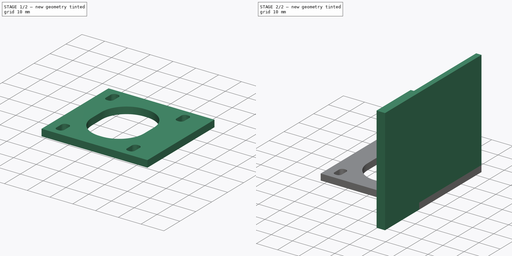
[diagram: build sequence overview — one tinted view per stage of 2, left to right]
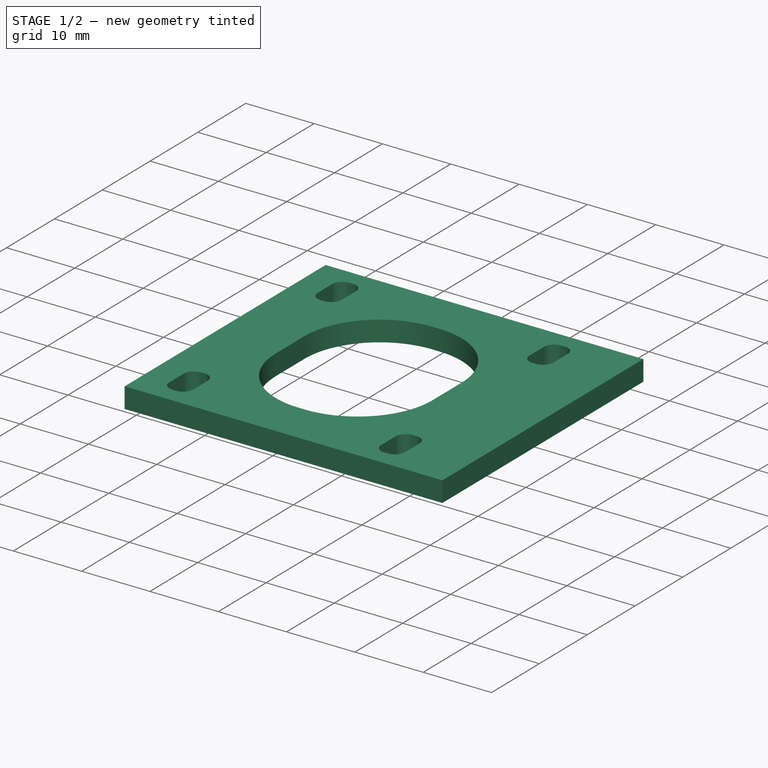
[diagram: stage 1 of 2 — iso view after this stage's code; geometry added in this stage tinted green]
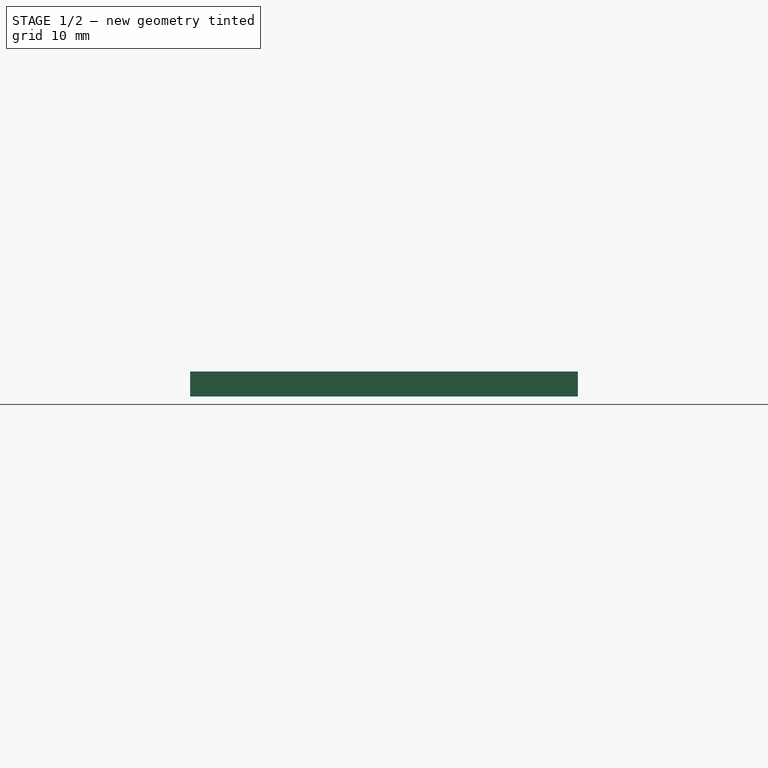
[diagram: stage 1 of 2 — front view after this stage's code; geometry added in this stage tinted green]
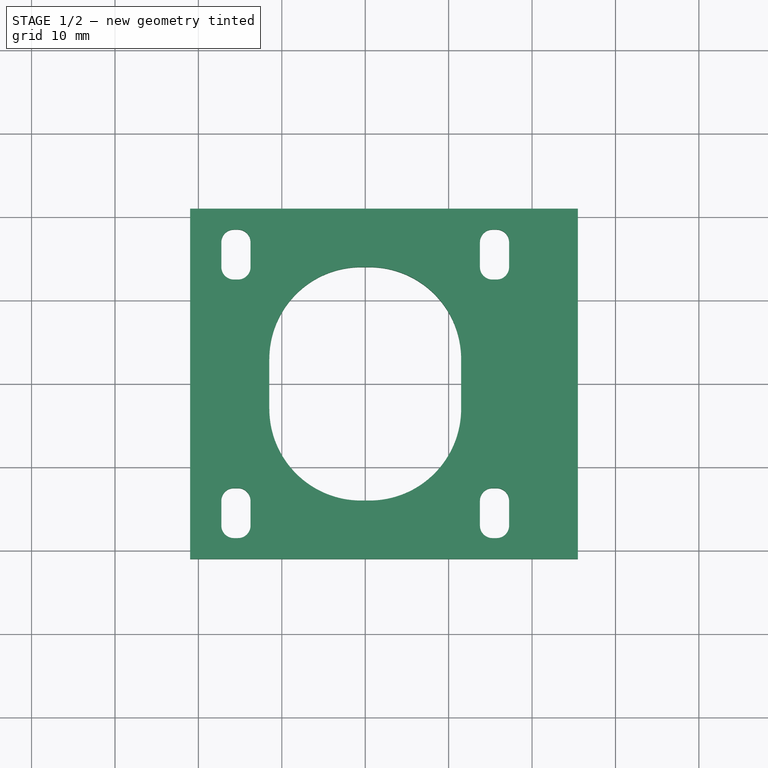
[diagram: stage 1 of 2 — top view after this stage's code; geometry added in this stage tinted green]
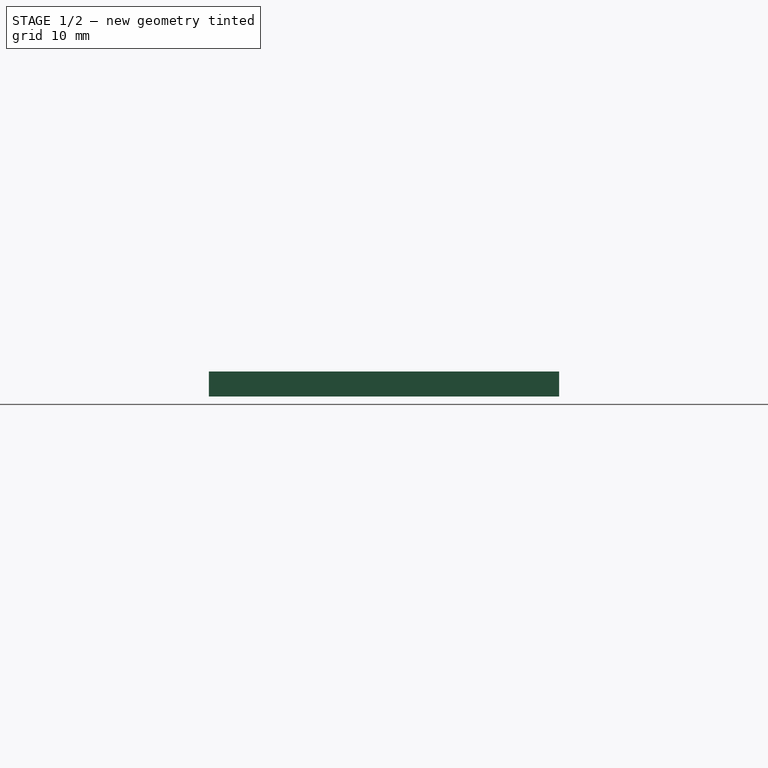
[diagram: stage 1 of 2 — right view after this stage's code; geometry added in this stage tinted green]
FCSTD DOCUMENT  (FreeCAD 0.18.4R)
Label: z-motor-mount
License: All rights reserved
LicenseURL: http://en.wikipedia.org/wiki/All_rights_reserved
objects: Sketcher::SketchObject×2, PartDesign::Pad×2, PartDesign::Body×1
note: 7 computed .brp shape members not serialized (recipe doc carries the construction recipe); baked Part::Feature solids carry a one-line shape summary decoded from their .brp

FEATURE [Sketcher::SketchObject] Sketch
  MapMode = 5
  Support = -> [XY_Plane]
  sketch-geometry (48):
    g0: LineSegment StartX=-21 StartY=-21 StartZ=0 EndX=25.5 EndY=-21 EndZ=0
    g1: LineSegment StartX=25.5 StartY=-21 StartZ=0 EndX=25.5 EndY=21 EndZ=0
    g2: LineSegment StartX=25.5 StartY=21 StartZ=0 EndX=-21 EndY=21 EndZ=0
    g3: LineSegment StartX=-21 StartY=21 StartZ=0 EndX=-21 EndY=-21 EndZ=0
    g4: LineSegment StartX=-0.5 StartY=14 StartZ=0 EndX=0.5 EndY=14 EndZ=0
    g5: LineSegment StartX=11.5 StartY=3 StartZ=0 EndX=11.5 EndY=-3 EndZ=0
    g6: LineSegment StartX=0.5 StartY=-14 StartZ=0 EndX=-0.5 EndY=-14 EndZ=0
    g7: LineSegment StartX=-11.5 StartY=-3 StartZ=0 EndX=-11.5 EndY=3 EndZ=0
    g8: ArcOfCircle CenterX=-0.5 CenterY=3 CenterZ=0 NormalX=0 NormalY=0 NormalZ=1 AngleXU=0 Radius=11 StartAngle=1.5708 EndAngle=3.14159
    g9: ArcOfCircle CenterX=0.5 CenterY=3 CenterZ=0 NormalX=0 NormalY=0 NormalZ=1 AngleXU=0 Radius=11 StartAngle=2.06464e-11 EndAngle=1.5708
    g10: ArcOfCircle CenterX=0.5 CenterY=-3 CenterZ=0 NormalX=0 NormalY=0 NormalZ=1 AngleXU=0 Radius=11 StartAngle=4.71239 EndAngle=6.28319
    g11: ArcOfCircle CenterX=-0.5 CenterY=-3 CenterZ=0 NormalX=0 NormalY=0 NormalZ=1 AngleXU=0 Radius=11 StartAngle=3.14159 EndAngle=4.71239
    g12: LineSegment [constr] StartX=-15.5 StartY=15.5 StartZ=0 EndX=15.5 EndY=15.5 EndZ=0
    g13: LineSegment [constr] StartX=15.5 StartY=15.5 StartZ=0 EndX=15.5 EndY=-15.5 EndZ=0
    g14: LineSegment [constr] StartX=15.5 StartY=-15.5 StartZ=0 EndX=-15.5 EndY=-15.5 EndZ=0
    g15: LineSegment [constr] StartX=-15.5 StartY=-15.5 StartZ=0 EndX=-15.5 EndY=15.5 EndZ=0
    g16: LineSegment StartX=-15.75 StartY=-12.5 StartZ=0 EndX=-15.25 EndY=-12.5 EndZ=0
    g17: LineSegment StartX=-13.75 StartY=-14 StartZ=0 EndX=-13.75 EndY=-17 EndZ=0
    g18: LineSegment StartX=-15.25 StartY=-18.5 StartZ=0 EndX=-15.75 EndY=-18.5 EndZ=0
    g19: LineSegment StartX=-17.25 StartY=-17 StartZ=0 EndX=-17.25 EndY=-14 EndZ=0
    g20: ArcOfCircle CenterX=-15.75 CenterY=-14 CenterZ=0 NormalX=0 NormalY=0 NormalZ=1 AngleXU=0 Radius=1.5 StartAngle=1.5708 EndAngle=3.14159
    g21: ArcOfCircle CenterX=-15.25 CenterY=-14 CenterZ=0 NormalX=0 NormalY=0 NormalZ=1 AngleXU=0 Radius=1.5 StartAngle=0 EndAngle=1.5708
    g22: ArcOfCircle CenterX=-15.25 CenterY=-17 CenterZ=0 NormalX=0 NormalY=0 NormalZ=1 AngleXU=0 Radius=1.5 StartAngle=4.71239 EndAngle=6.28319
    g23: ArcOfCircle CenterX=-15.75 CenterY=-17 CenterZ=0 NormalX=0 NormalY=0 NormalZ=1 AngleXU=0 Radius=1.5 StartAngle=3.14159 EndAngle=4.71239
    g24: LineSegment StartX=15.25 StartY=-12.5 StartZ=0 EndX=15.75 EndY=-12.5 EndZ=0
    g25: LineSegment StartX=17.25 StartY=-14 StartZ=0 EndX=17.25 EndY=-17 EndZ=0
    g26: LineSegment StartX=15.75 StartY=-18.5 StartZ=0 EndX=15.25 EndY=-18.5 EndZ=0
    g27: LineSegment StartX=13.75 StartY=-17 StartZ=0 EndX=13.75 EndY=-14 EndZ=0
    g28: ArcOfCircle CenterX=15.25 CenterY=-14 CenterZ=0 NormalX=0 NormalY=0 NormalZ=1 AngleXU=0 Radius=1.5 StartAngle=1.5708 EndAngle=3.14159
    g29: ArcOfCircle CenterX=15.75 CenterY=-14 CenterZ=0 NormalX=0 NormalY=0 NormalZ=1 AngleXU=0 Radius=1.5 StartAngle=0 EndAngle=1.5708
    g30: ArcOfCircle CenterX=15.75 CenterY=-17 CenterZ=0 NormalX=0 NormalY=0 NormalZ=1 AngleXU=0 Radius=1.5 StartAngle=4.71239 EndAngle=6.28319
    g31: ArcOfCircle CenterX=15.25 CenterY=-17 CenterZ=0 NormalX=0 NormalY=0 NormalZ=1 AngleXU=0 Radius=1.5 StartAngle=3.14159 EndAngle=4.71239
    g32: LineSegment StartX=15.25 StartY=18.5 StartZ=0 EndX=15.75 EndY=18.5 EndZ=0
    g33: LineSegment StartX=17.25 StartY=17 StartZ=0 EndX=17.25 EndY=14 EndZ=0
    g34: LineSegment StartX=15.75 StartY=12.5 StartZ=0 EndX=15.25 EndY=12.5 EndZ=0
    g35: LineSegment StartX=13.75 StartY=14 StartZ=0 EndX=13.75 EndY=17 EndZ=0
    g36: ArcOfCircle CenterX=15.25 CenterY=17 CenterZ=0 NormalX=0 NormalY=0 NormalZ=1 AngleXU=0 Radius=1.5 StartAngle=1.5708 EndAngle=3.14159
    g37: ArcOfCircle CenterX=15.75 CenterY=17 CenterZ=0 NormalX=0 NormalY=0 NormalZ=1 AngleXU=0 Radius=1.5 StartAngle=0 EndAngle=1.5708
    g38: ArcOfCircle CenterX=15.75 CenterY=14 CenterZ=0 NormalX=0 NormalY=0 NormalZ=1 AngleXU=0 Radius=1.5 StartAngle=4.71239 EndAngle=6.28319
    g39: ArcOfCircle CenterX=15.25 CenterY=14 CenterZ=0 NormalX=0 NormalY=0 NormalZ=1 AngleXU=0 Radius=1.5 StartAngle=3.14159 EndAngle=4.71239
    g40: LineSegment StartX=-15.75 StartY=18.5 StartZ=0 EndX=-15.25 EndY=18.5 EndZ=0
    g41: LineSegment StartX=-13.75 StartY=17 StartZ=0 EndX=-13.75 EndY=14 EndZ=0
    g42: LineSegment StartX=-15.25 StartY=12.5 StartZ=0 EndX=-15.75 EndY=12.5 EndZ=0
    g43: LineSegment StartX=-17.25 StartY=14 StartZ=0 EndX=-17.25 EndY=17 EndZ=0
    g44: ArcOfCircle CenterX=-15.75 CenterY=17 CenterZ=0 NormalX=0 NormalY=0 NormalZ=1 AngleXU=0 Radius=1.5 StartAngle=1.5708 EndAngle=3.14159
    g45: ArcOfCircle CenterX=-15.25 CenterY=17 CenterZ=0 NormalX=0 NormalY=0 NormalZ=1 AngleXU=0 Radius=1.5 StartAngle=1e-16 EndAngle=1.5708
    g46: ArcOfCircle CenterX=-15.25 CenterY=14 CenterZ=0 NormalX=0 NormalY=0 NormalZ=1 AngleXU=0 Radius=1.5 StartAngle=4.71239 EndAngle=6.28319
    g47: ArcOfCircle CenterX=-15.75 CenterY=14 CenterZ=0 NormalX=0 NormalY=0 NormalZ=1 AngleXU=0 Radius=1.5 StartAngle=3.14159 EndAngle=4.71239
  constraints (118):
    c: Coincident(g0,g1)
    c: Coincident(g1,g2)
    c: Coincident(g2,g3)
    c: Coincident(g3,g0)
    c: Horizontal(g0)
    c: Horizontal(g2)
    c: Vertical(g1)
    c: Vertical(g3)
    c: DistanceY(g3,g3) = 42
    c: DistanceX(g2,g2) = 46.5
    c: Horizontal(g4)
    c: Horizontal(g6)
    c: Vertical(g5)
    c: Vertical(g7)
    c: Tangent(g4,g8) = 1.5708
    c: Tangent(g7,g8) = 1.5708
    c: Tangent(g4,g9) = 1.5708
    c: Tangent(g5,g9) = 1.5708
    c: Tangent(g5,g10) = 1.5708
    c: Tangent(g6,g10) = 1.5708
    c: Tangent(g6,g11) = 1.5708
    c: Tangent(g7,g11) = 1.5708
    c: Symmetric(g8,g10,g-1)
    c: DistanceX(g7,g5) = 23
    c: Equal(g8,g9)
    c: Equal(g9,g10)
    c: Equal(g10,g11)
    c: Radius(g8) = 11
    c: DistanceY(g6,g4) = 28
    c: Coincident(g12,g13)
    c: Coincident(g13,g14)
    c: Coincident(g14,g15)
    c: Coincident(g15,g12)
    c: Horizontal(g12)
    c: Horizontal(g14)
    c: Vertical(g13)
    c: Vertical(g15)
    c: DistanceY(g15,g15) = 31
    c: DistanceX(g12,g12) = 31
    c: Symmetric(g12,g13,g-1)
    c: Horizontal(g16)
    c: Horizontal(g18)
    c: Vertical(g17)
    c: Vertical(g19)
    c: Tangent(g16,g20) = 1.5708
    c: Tangent(g19,g20) = 1.5708
    c: Tangent(g16,g21) = 1.5708
    c: Tangent(g17,g21) = 1.5708
    c: Tangent(g17,g22) = 1.5708
    c: Tangent(g18,g22) = 1.5708
    c: Tangent(g18,g23) = 1.5708
    c: Tangent(g19,g23) = 1.5708
    c: DistanceX(g19,g17) = 3.5
    c: Equal(g20,g21)
    c: Equal(g21,g23)
    c: Equal(g23,g22)
    c: Radius(g22) = 1.5
    c: Symmetric(g20,g22,g14)
    c: DistanceY(g18,g16) = 6
    c: Horizontal(g24)
    c: Horizontal(g26)
    c: Vertical(g25)
    c: Vertical(g27)
    c: Tangent(g24,g28) = 1.5708
    c: Tangent(g27,g28) = 1.5708
    c: Tangent(g24,g29) = 1.5708
    c: Tangent(g25,g29) = 1.5708
    c: Tangent(g25,g30) = 1.5708
    c: Tangent(g26,g30) = 1.5708
    c: Tangent(g26,g31) = 1.5708
    c: Tangent(g27,g31) = 1.5708
    c: DistanceX(g27,g25) = 3.5
    c: Equal(g28,g29)
    c: Equal(g29,g31)
    c: Equal(g31,g30)
    c: Equal(g22,g30) = 1.5
    c: DistanceY(g26,g24) = 6
    c: Symmetric(g28,g30,g13)
    c: Horizontal(g32)
    c: Horizontal(g34)
    c: Vertical(g33)
    c: Vertical(g35)
    c: Tangent(g32,g36) = 1.5708
    c: Tangent(g35,g36) = 1.5708
    c: Tangent(g32,g37) = 1.5708
    c: Tangent(g33,g37) = 1.5708
    c: Tangent(g33,g38) = 1.5708
    c: Tangent(g34,g38) = 1.5708
    c: Tangent(g34,g39) = 1.5708
    c: Tangent(g35,g39) = 1.5708
    c: DistanceX(g35,g33) = 3.5
    c: Equal(g36,g37)
    c: Equal(g37,g39)
    c: Equal(g39,g38)
    c: DistanceY(g34,g32) = 6
    c: Radius(g37) = 1.5
    c: Symmetric(g37,g39,g12)
    c: Horizontal(g40)
    c: Horizontal(g42)
    c: Vertical(g41)
    c: Vertical(g43)
    c: Tangent(g40,g44) = 1.5708
    c: Tangent(g43,g44) = 1.5708
    c: Tangent(g40,g45) = 1.5708
    c: Tangent(g41,g45) = 1.5708
    c: Tangent(g41,g46) = 1.5708
    c: Tangent(g42,g46) = 1.5708
    c: Tangent(g42,g47) = 1.5708
    c: Tangent(g43,g47) = 1.5708
    c: DistanceX(g43,g41) = 3.5
    c: Equal(g44,g45)
    c: Equal(g45,g47)
    c: Equal(g47,g46)
    c: DistanceY(g42,g40) = 6
    c: Equal(g37,g45) = 1.5
    c: Symmetric(g47,g45,g12)
    c: DistanceX(g2,g-1) = 21
    c: DistanceY(g-1,g2) = 21
FEATURE [PartDesign::Pad] Pad
  Length = 3
  Length2 = 100
  Profile = -> Sketch
  Type = 0
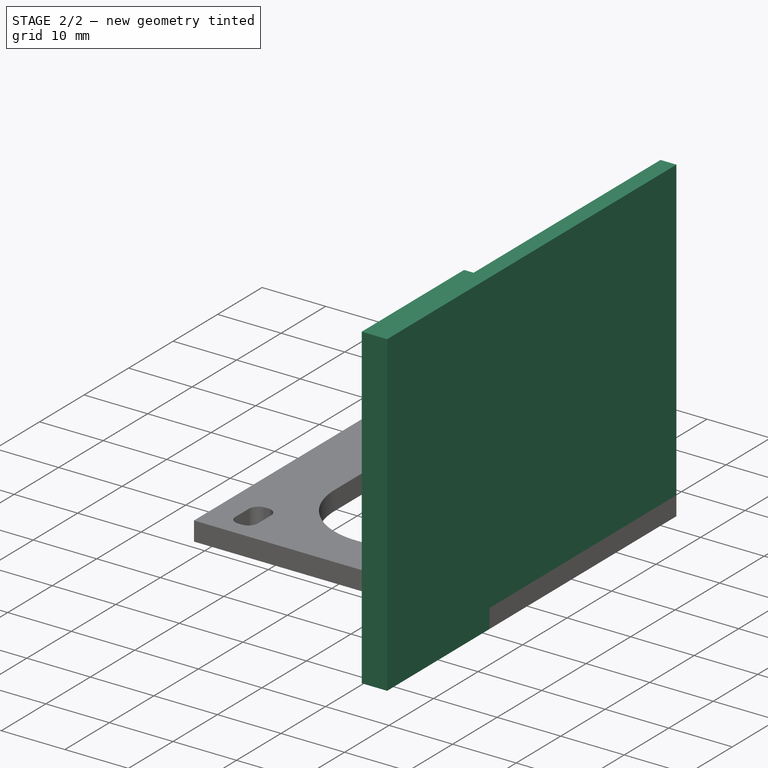
[diagram: stage 2 of 2 — iso view after this stage's code; geometry added in this stage tinted green]
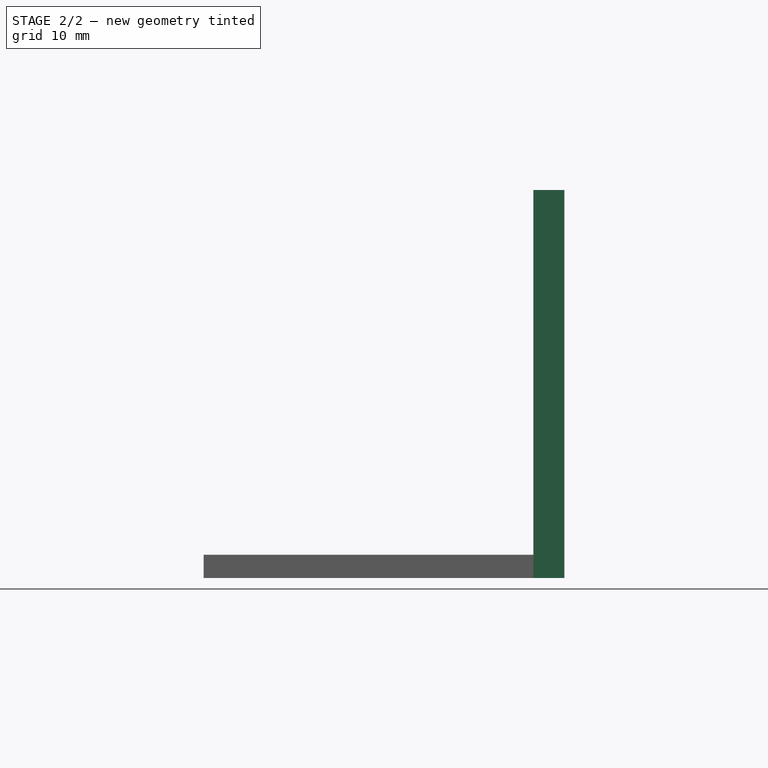
[diagram: stage 2 of 2 — front view after this stage's code; geometry added in this stage tinted green]
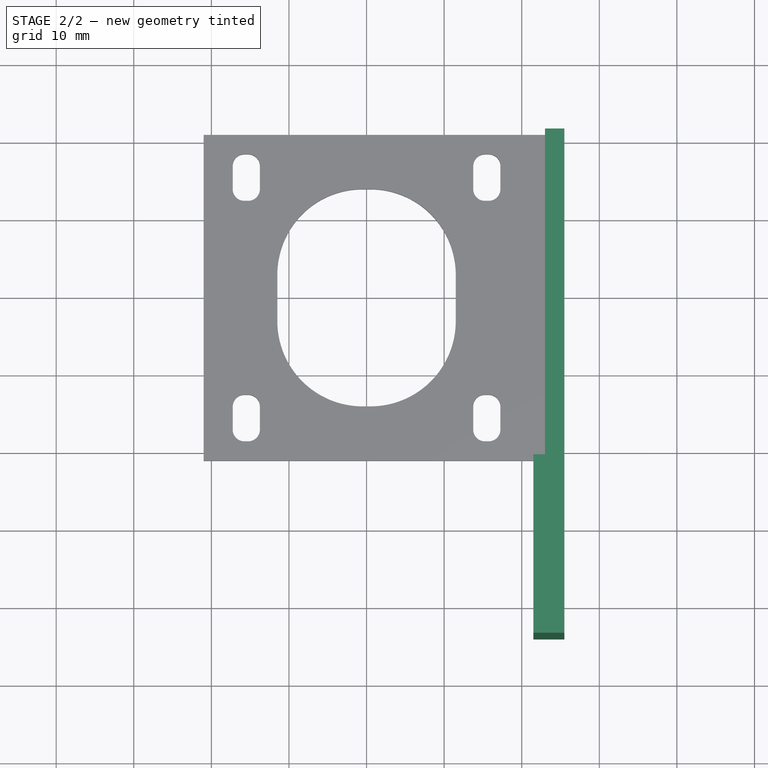
[diagram: stage 2 of 2 — top view after this stage's code; geometry added in this stage tinted green]
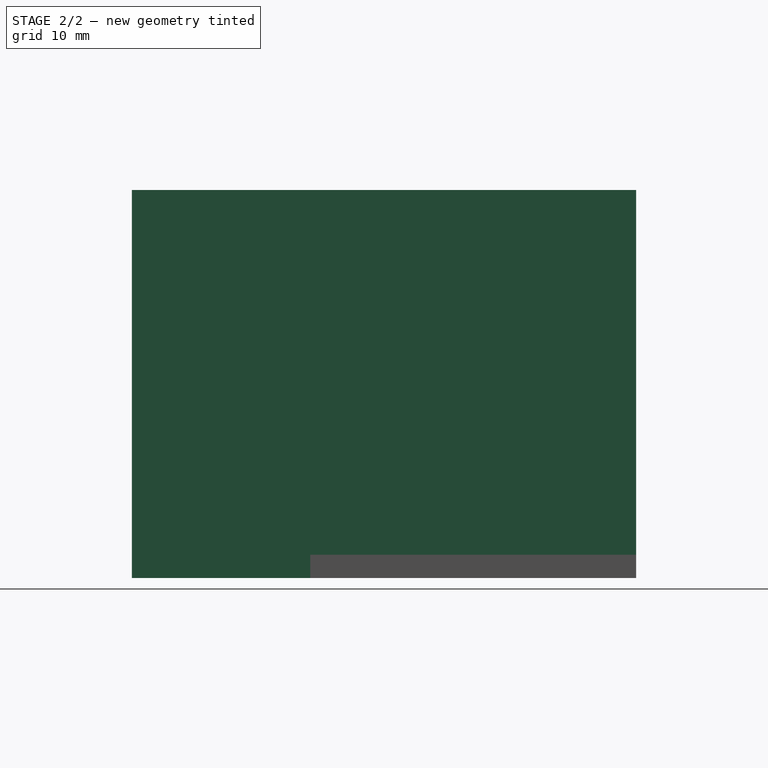
[diagram: stage 2 of 2 — right view after this stage's code; geometry added in this stage tinted green]
FEATURE [Sketcher::SketchObject] Sketch001
  ExternalGeometry = -> [Pad]
  MapMode = 5
  Support = -> [XY_Plane]
  sketch-geometry (6):
    g0: LineSegment StartX=23 StartY=21 StartZ=0 EndX=25.5 EndY=21 EndZ=0
    g1: LineSegment StartX=25.5 StartY=21 StartZ=0 EndX=25.5 EndY=-44 EndZ=0
    g2: LineSegment StartX=25.5 StartY=-44 StartZ=0 EndX=21.5 EndY=-44 EndZ=0
    g3: LineSegment StartX=21.5 StartY=-44 StartZ=0 EndX=21.5 EndY=-21 EndZ=0
    g4: LineSegment StartX=21.5 StartY=-21 StartZ=0 EndX=23 EndY=-21 EndZ=0
    g5: LineSegment StartX=23 StartY=-21 StartZ=0 EndX=23 EndY=21 EndZ=0
  constraints (17):
    c: PointOnObject(g0,g-4)
    c: Coincident(g0,g-4)
    c: Coincident(g0,g1)
    c: Vertical(g1)
    c: Coincident(g1,g2)
    c: Horizontal(g2)
    c: Coincident(g2,g3)
    c: PointOnObject(g3,g-5)
    c: Vertical(g3)
    c: Coincident(g3,g4)
    c: PointOnObject(g4,g-5)
    c: Coincident(g4,g5)
    c: Coincident(g5,g0)
    c: Vertical(g5)
    c: DistanceY(g1,g1) = 65
    c: DistanceX(g2,g2) = 4
    c: DistanceX(g0,g0) = 2.5
FEATURE [PartDesign::Pad] Pad001
  BaseFeature = -> Pad
  Length = 50
  Length2 = 100
  Profile = -> Sketch001
  Type = 0
FEATURE [PartDesign::Body] Body
  Group = -> [Sketch,Pad,Sketch001,Pad001]
  Origin = -> Origin
  Tip = -> Pad001
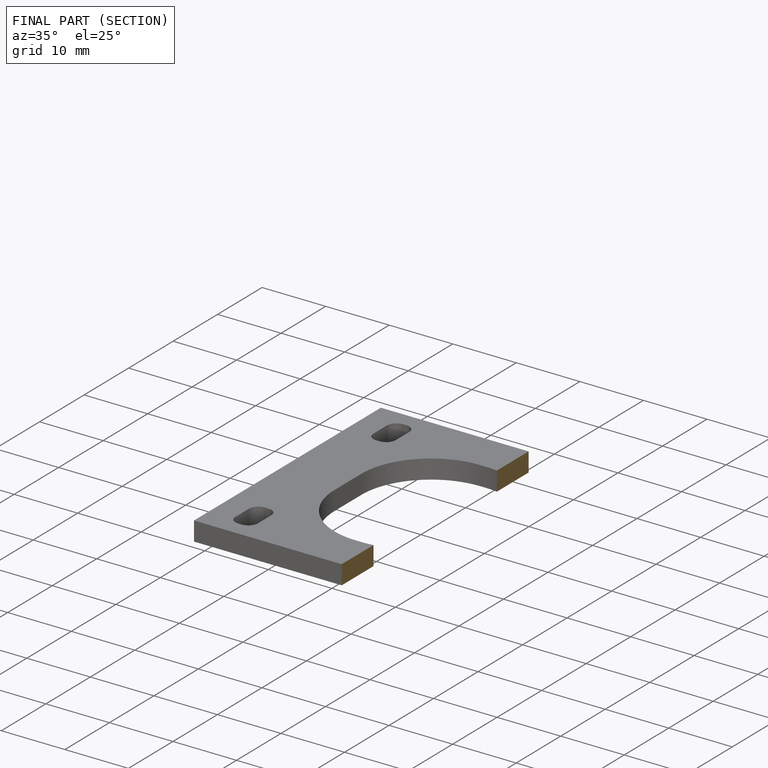
[diagram: finished part — half-section view (interior)]
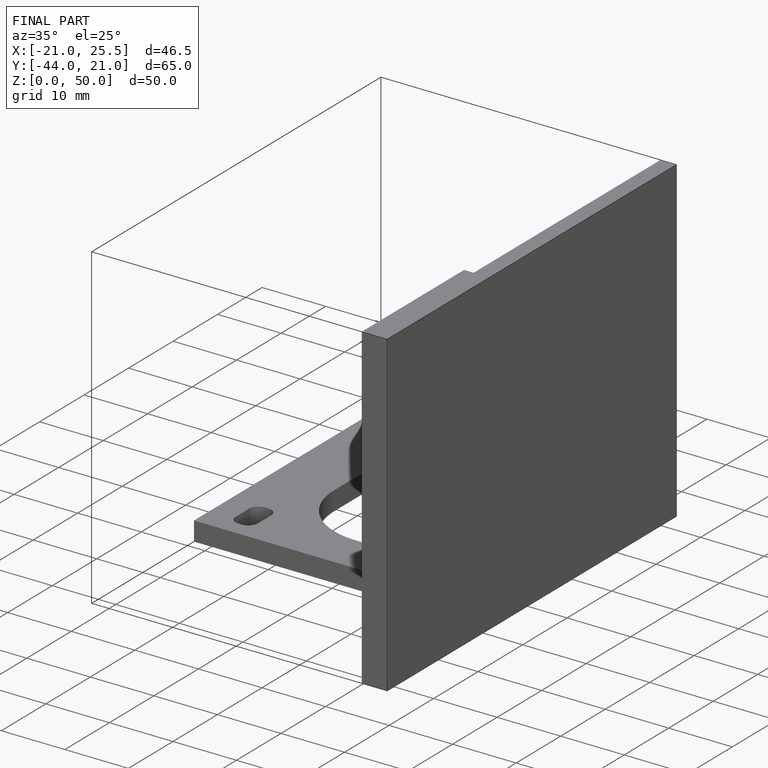
[diagram: finished part — iso view with bounding-box wireframe]
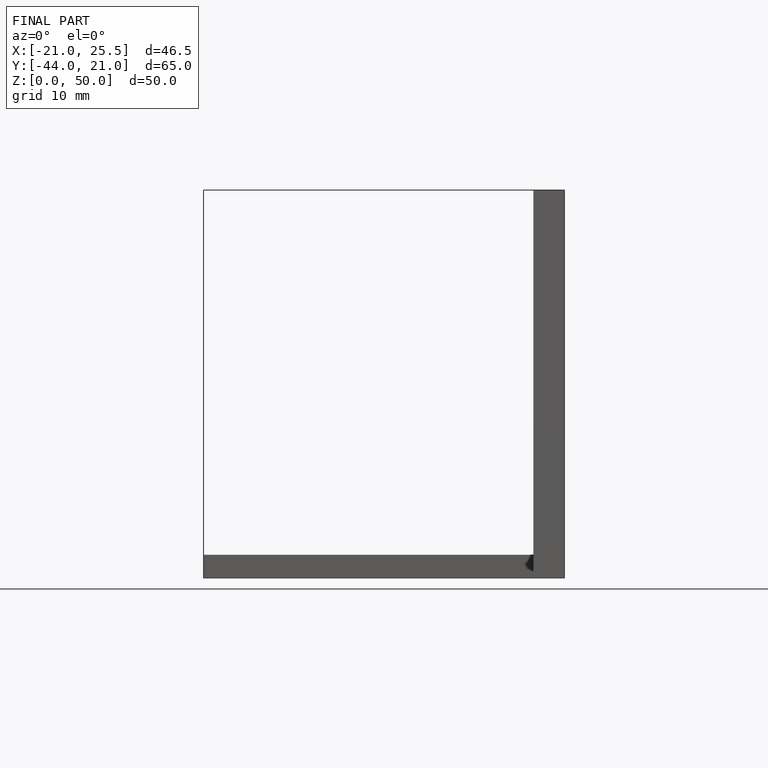
[diagram: finished part — front view with bounding-box wireframe]
